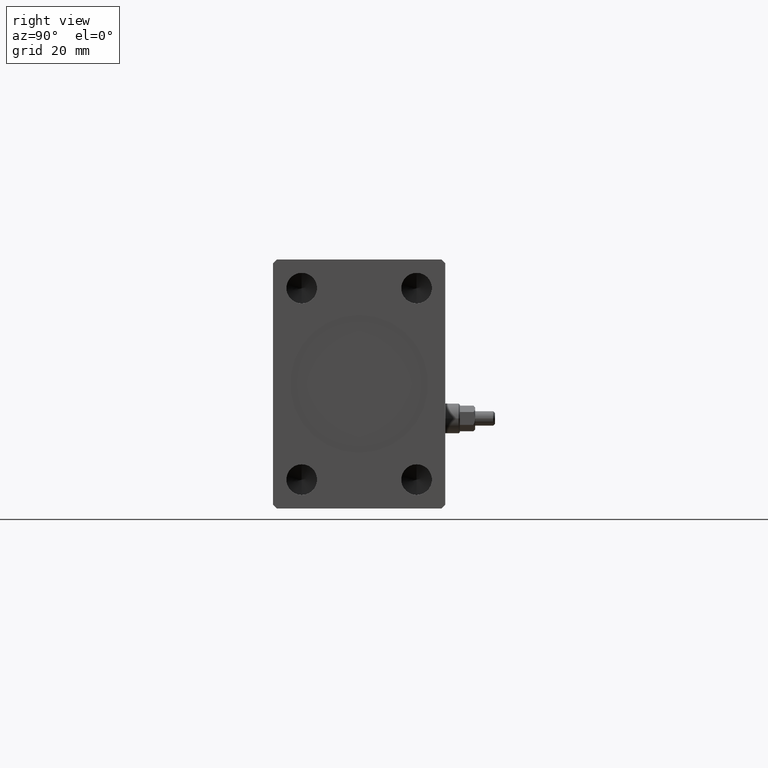
[diagram: clean part render]
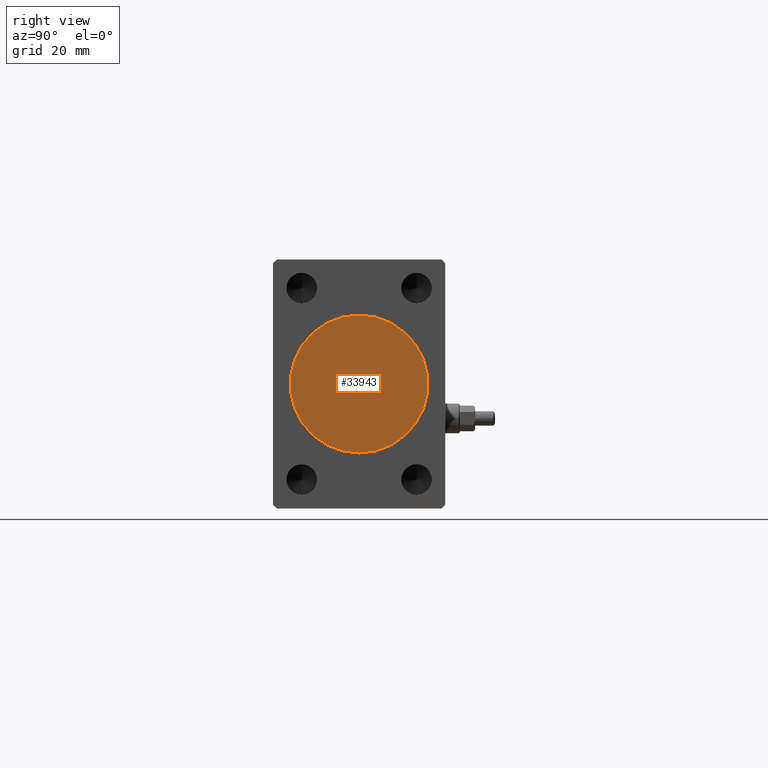
[diagram: same view with one face highlighted and labeled with its STEP entity id]
A machine part, right view. The second image highlights one B-rep face of the part: STEP entity #33943.
In plain terms, the highlighted planar face has unit normal (1, 0, 0).
Its self-contained STEP definition (entity closure, byte-faithful):
#2246 = CARTESIAN_POINT ( 'NONE',  ( 162.8000000000000114, 0.000000000000000000, -18.00000000000000000 ) ) ;
#3721 = CARTESIAN_POINT ( 'NONE',  ( 162.8000000000000114, 2.204364238465235428E-15, 18.00000000000000000 ) ) ;
#7309 = DIRECTION ( 'NONE',  ( 1.000000000000000000, 0.000000000000000000, 0.000000000000000000 ) ) ;
#7830 = AXIS2_PLACEMENT_3D ( 'NONE', #43646, #32459, #15313 ) ;
#8403 = ORIENTED_EDGE ( 'NONE', *, *, #41126, .T. ) ;
#9094 = ORIENTED_EDGE ( 'NONE', *, *, #22634, .T. ) ;
#9383 = EDGE_LOOP ( 'NONE', ( #8403, #9094 ) ) ;
#15313 = DIRECTION ( 'NONE',  ( 0.000000000000000000, 0.000000000000000000, -1.000000000000000000 ) ) ;
#17463 = DIRECTION ( 'NONE',  ( 0.000000000000000000, 0.000000000000000000, -1.000000000000000000 ) ) ;
#18527 = AXIS2_PLACEMENT_3D ( 'NONE', #41359, #7309, #37928 ) ;
#19421 = AXIS2_PLACEMENT_3D ( 'NONE', #20887, #38471, #17463 ) ;
#20887 = CARTESIAN_POINT ( 'NONE',  ( 162.8000000000000114, 0.000000000000000000, 0.000000000000000000 ) ) ;
#22634 = EDGE_CURVE ( 'NONE', #33660, #28772, #27527, .T. ) ;
#24702 = FACE_OUTER_BOUND ( 'NONE', #9383, .T. ) ;
#27527 = CIRCLE ( 'NONE', #7830, 18.00000000000000000 ) ;
#28772 = VERTEX_POINT ( 'NONE', #2246 ) ;
#31825 = CIRCLE ( 'NONE', #19421, 18.00000000000000000 ) ;
#32459 = DIRECTION ( 'NONE',  ( 1.000000000000000000, 0.000000000000000000, 0.000000000000000000 ) ) ;
#33660 = VERTEX_POINT ( 'NONE', #3721 ) ;
#33943 = ADVANCED_FACE ( 'NONE', ( #24702 ), #38612, .T. ) ;
#37928 = DIRECTION ( 'NONE',  ( 0.000000000000000000, 0.000000000000000000, -1.000000000000000000 ) ) ;
#38471 = DIRECTION ( 'NONE',  ( 1.000000000000000000, 0.000000000000000000, 0.000000000000000000 ) ) ;
#38612 = PLANE ( 'NONE',  #18527 ) ;
#41126 = EDGE_CURVE ( 'NONE', #28772, #33660, #31825, .T. ) ;
#41359 = CARTESIAN_POINT ( 'NONE',  ( 162.8000000000000114, 0.000000000000000000, 0.000000000000000000 ) ) ;
#43646 = CARTESIAN_POINT ( 'NONE',  ( 162.8000000000000114, 0.000000000000000000, 0.000000000000000000 ) ) ;